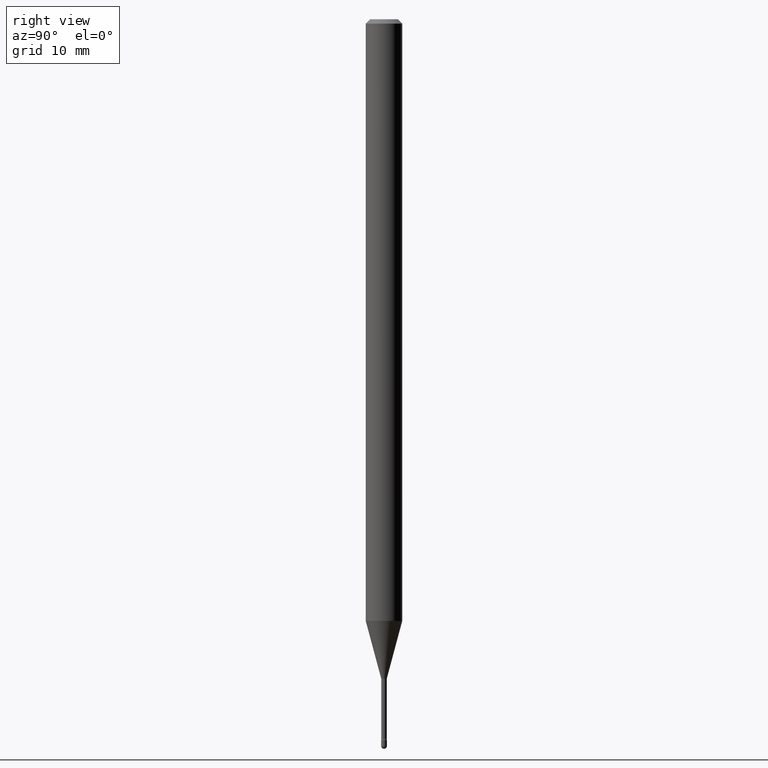
[diagram: clean part render]
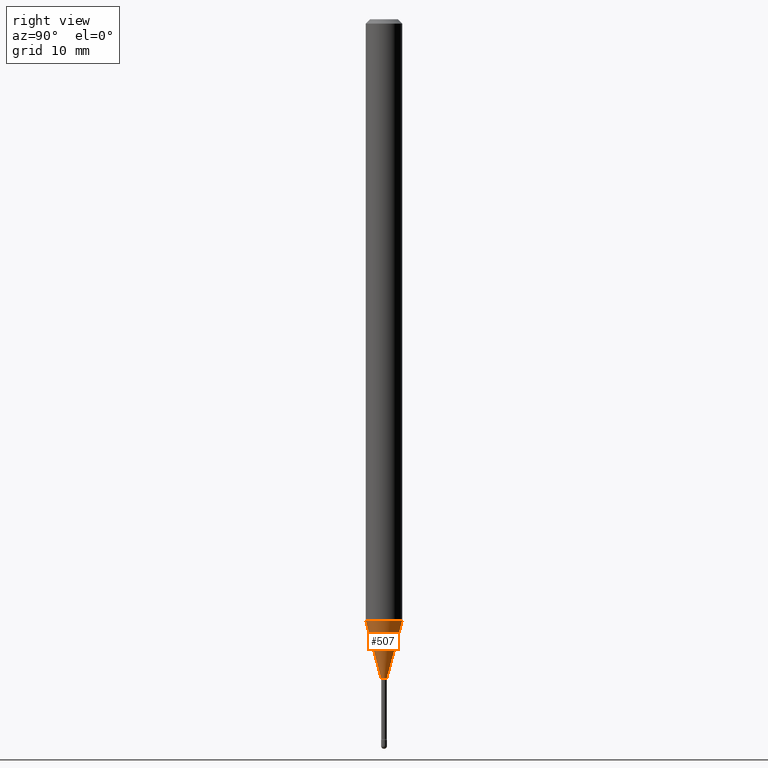
[diagram: same view with one face highlighted and labeled with its STEP entity id]
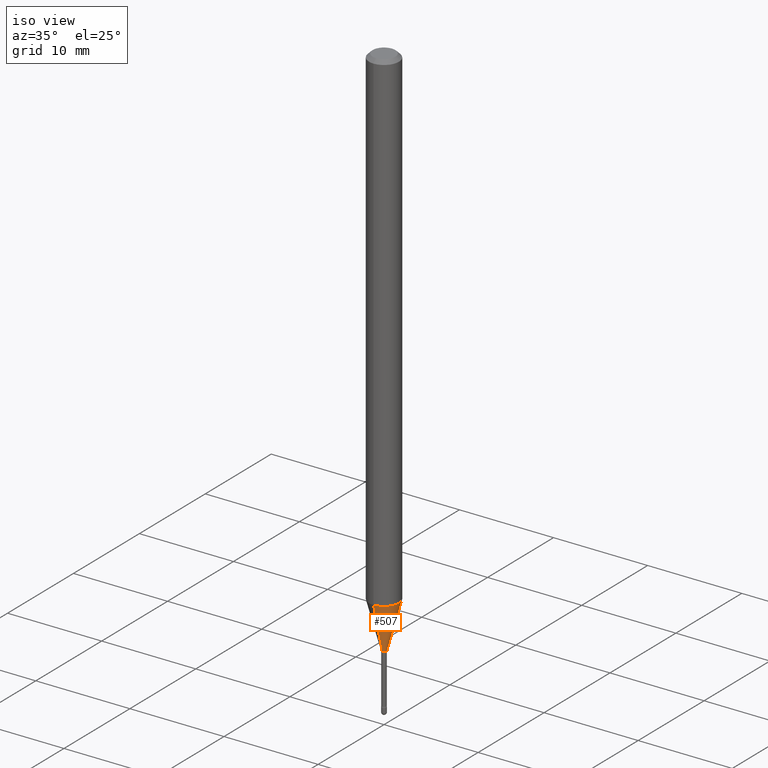
[diagram: same view with one face highlighted and labeled with its STEP entity id]
A machine part, right view. The second image highlights one B-rep face of the part: STEP entity #507.
A second angle (iso view) of the same face is appended — the face is thin or edge-on in the first view.
In plain terms, the highlighted conical surface has half-angle 15 deg.
Its self-contained STEP definition (entity closure, byte-faithful):
#25 = DIRECTION ( 'NONE',  ( 1.839019923739601104E-15, 0.2588190451025250693, 0.9659258262890670910 ) ) ;
#48 = FACE_OUTER_BOUND ( 'NONE', #547, .T. ) ;
#49 = EDGE_CURVE ( 'NONE', #74, #512, #363, .T. ) ;
#74 = VERTEX_POINT ( 'NONE', #369 ) ;
#80 = CARTESIAN_POINT ( 'NONE',  ( 7.042269065260420504E-17, 0.009911112605656097890, -2.258092501787273498 ) ) ;
#100 = VECTOR ( 'NONE', #315, 39.37007874015748143 ) ;
#102 = CARTESIAN_POINT ( 'NONE',  ( -4.364351673553412809E-16, -0.06250000000000720257, -2.061828102118093309 ) ) ;
#118 = AXIS2_PLACEMENT_3D ( 'NONE', #214, #167, #510 ) ;
#145 = DIRECTION ( 'NONE',  ( -2.445514680004829566E-29, 3.491415644922369221E-15, 1.000000000000000000 ) ) ;
#167 = DIRECTION ( 'NONE',  ( -2.445514680004829566E-29, 3.491415644922369221E-15, 1.000000000000000000 ) ) ;
#169 = ORIENTED_EDGE ( 'NONE', *, *, #418, .F. ) ;
#184 = EDGE_CURVE ( 'NONE', #512, #446, #296, .T. ) ;
#185 = AXIS2_PLACEMENT_3D ( 'NONE', #371, #145, #459 ) ;
#214 = CARTESIAN_POINT ( 'NONE',  ( 5.042230891376295236E-29, -7.198698892875708228E-15, -2.061828102118093753 ) ) ;
#226 = DIRECTION ( 'NONE',  ( -6.982962677686264344E-15, -1.000000000000000000, 0.000000000000000000 ) ) ;
#229 = CARTESIAN_POINT ( 'NONE',  ( 2.572559502513586973E-16, 0.009911112605656097890, -2.258092501787273498 ) ) ;
#269 = DIRECTION ( 'NONE',  ( -2.445514680004829566E-29, 3.491415644922369221E-15, 1.000000000000000000 ) ) ;
#277 = CONICAL_SURFACE ( 'NONE', #337, 0.009911112605663982209, 0.2617993877991502960 ) ;
#289 = EDGE_CURVE ( 'NONE', #427, #446, #514, .T. ) ;
#296 = LINE ( 'NONE', #80, #460 ) ;
#315 = DIRECTION ( 'NONE',  ( -1.807323732225330928E-15, -0.2588190451025182970, 0.9659258262890689783 ) ) ;
#337 = AXIS2_PLACEMENT_3D ( 'NONE', #525, #269, #226 ) ;
#363 = CIRCLE ( 'NONE', #185, 0.009911112605663982209 ) ;
#369 = CARTESIAN_POINT ( 'NONE',  ( -6.920892941964224504E-17, -0.009911112605671864792, -2.258092501787273498 ) ) ;
#371 = CARTESIAN_POINT ( 'NONE',  ( 5.522198361929608993E-29, -7.883939488421979376E-15, -2.258092501787273498 ) ) ;
#380 = ORIENTED_EDGE ( 'NONE', *, *, #289, .F. ) ;
#401 = LINE ( 'NONE', #462, #100 ) ;
#417 = ORIENTED_EDGE ( 'NONE', *, *, #49, .T. ) ;
#418 = EDGE_CURVE ( 'NONE', #74, #427, #401, .T. ) ;
#424 = ORIENTED_EDGE ( 'NONE', *, *, #184, .T. ) ;
#427 = VERTEX_POINT ( 'NONE', #102 ) ;
#446 = VERTEX_POINT ( 'NONE', #534 ) ;
#459 = DIRECTION ( 'NONE',  ( -6.982962677686264344E-15, -1.000000000000000000, 0.000000000000000000 ) ) ;
#460 = VECTOR ( 'NONE', #25, 39.37007874015748143 ) ;
#462 = CARTESIAN_POINT ( 'NONE',  ( -6.920892941964224504E-17, -0.009911112605671864792, -2.258092501787273498 ) ) ;
#507 = ADVANCED_FACE ( 'NONE', ( #48 ), #277, .T. ) ;
#510 = DIRECTION ( 'NONE',  ( -6.982962677686265922E-15, -1.000000000000000000, 4.370956789862821150E-15 ) ) ;
#512 = VERTEX_POINT ( 'NONE', #229 ) ;
#514 = CIRCLE ( 'NONE', #118, 0.06250000000000000000 ) ;
#525 = CARTESIAN_POINT ( 'NONE',  ( 5.522198361929608993E-29, -7.883939488421979376E-15, -2.258092501787273498 ) ) ;
#534 = CARTESIAN_POINT ( 'NONE',  ( 4.440892098501128074E-16, 0.06249999999999279743, -2.061828102118093753 ) ) ;
#547 = EDGE_LOOP ( 'NONE', ( #417, #424, #380, #169 ) ) ;